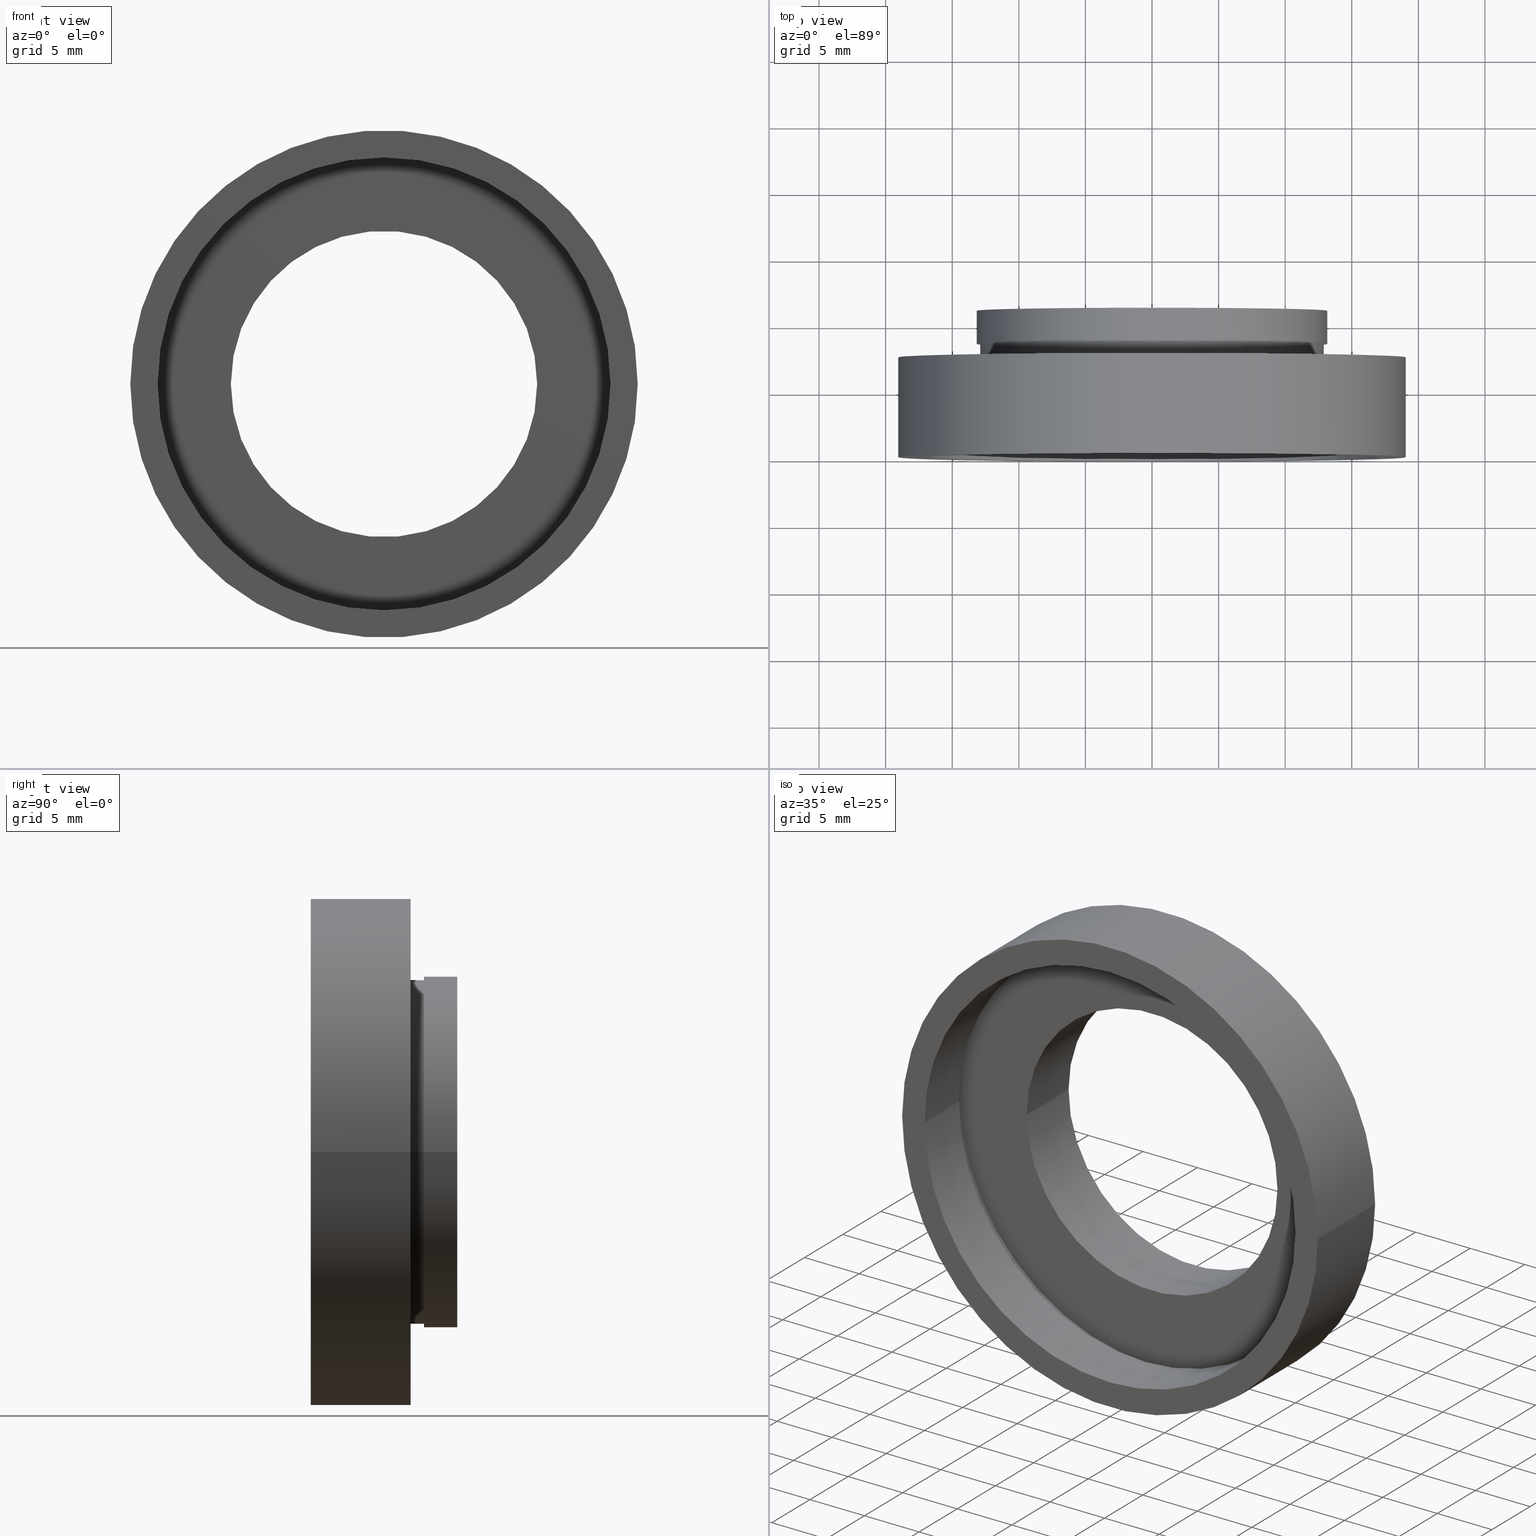
[diagram: canonical four-view strip — front | top / right | iso, engineering-drawing reading convention]
A machine part, canonical four-view strip (front | top / right | iso — engineering-drawing reading convention). The complete STEP part file that produces these views, byte-faithful:
ISO-10303-21;
HEADER;
FILE_DESCRIPTION (( 'STEP AP214' ),
    '1' );
FILE_NAME ('504114.STEP',
    '2019-10-09T08:10:50',
    ( '' ),
    ( '' ),
    'SwSTEP 2.0',
    'SolidWorks 2016',
    '' );
FILE_SCHEMA (( 'AUTOMOTIVE_DESIGN' ));
ENDSEC;

DATA;
#1 = FACE_OUTER_BOUND ( 'NONE', #17, .T. ) ;
#2 = EDGE_LOOP ( 'NONE', ( #591, #211, #199, #290 ) ) ;
#3 = DIRECTION ( 'NONE',  ( -1.000000000000000000, -1.318178933113075200E-016, 0.0000000000000000000 ) ) ;
#4 = CIRCLE ( 'NONE', #327, 19.04999999999999700 ) ;
#5 = DIRECTION ( 'NONE',  ( -1.224646799147351000E-016, 1.000000000000000000, -0.0000000000000000000 ) ) ;
#6 =( GEOMETRIC_REPRESENTATION_CONTEXT ( 3 ) GLOBAL_UNCERTAINTY_ASSIGNED_CONTEXT ( ( #63 ) ) GLOBAL_UNIT_ASSIGNED_CONTEXT ( ( #434, #525, #151 ) ) REPRESENTATION_CONTEXT ( 'NONE', 'WORKASPACE' ) );
#7 = MECHANICAL_DESIGN_GEOMETRIC_PRESENTATION_REPRESENTATION (  '', ( #383 ), #449 ) ;
#8 = ORIENTED_EDGE ( 'NONE', *, *, #348, .T. ) ;
#9 = ADVANCED_FACE ( 'NONE', ( #126, #66 ), #263, .F. ) ;
#10 =( NAMED_UNIT ( * ) SI_UNIT ( $, .STERADIAN. ) SOLID_ANGLE_UNIT ( ) );
#11 = CYLINDRICAL_SURFACE ( 'NONE', #414, 17.00000000000000000 ) ;
#12 = DIRECTION ( 'NONE',  ( -1.000000000000000000, 0.0000000000000000000, 0.0000000000000000000 ) ) ;
#13 = DIRECTION ( 'NONE',  ( -1.000000000000000000, -1.224646799147351000E-016, 0.0000000000000000000 ) ) ;
#14 = ADVANCED_FACE ( 'NONE', ( #554 ), #362, .T. ) ;
#15 = ORIENTED_EDGE ( 'NONE', *, *, #316, .T. ) ;
#16 = CARTESIAN_POINT ( 'NONE',  ( 0.0000000000000000000, 16.88601823708207700, 0.0000000000000000000 ) ) ;
#17 = EDGE_LOOP ( 'NONE', ( #224, #89, #512, #81 ) ) ;
#18 = ORIENTED_EDGE ( 'NONE', *, *, #154, .F. ) ;
#19 = VECTOR ( 'NONE', #251, 1000.000000000000000 ) ;
#20 = DIRECTION ( 'NONE',  ( -1.000000000000000000, 0.0000000000000000000, 0.0000000000000000000 ) ) ;
#21 = EDGE_CURVE ( 'NONE', #272, #536, #431, .T. ) ;
#22 = FILL_AREA_STYLE ('',( #217 ) ) ;
#23 = ADVANCED_FACE ( 'NONE', ( #1 ), #95, .F. ) ;
#24 = ORIENTED_EDGE ( 'NONE', *, *, #325, .F. ) ;
#25 = CARTESIAN_POINT ( 'NONE',  ( 1.149455719078122700E-015, 7.499999999999998200, 0.0000000000000000000 ) ) ;
#26 = EDGE_CURVE ( 'NONE', #590, #112, #105, .T. ) ;
#27 = ORIENTED_EDGE ( 'NONE', *, *, #136, .F. ) ;
#28 = AXIS2_PLACEMENT_3D ( 'NONE', #261, #355, #307 ) ;
#29 = ORIENTED_EDGE ( 'NONE', *, *, #182, .T. ) ;
#30 = APPLICATION_CONTEXT ( 'automotive_design' ) ;
#31 = CYLINDRICAL_SURFACE ( 'NONE', #618, 12.90000000000000000 ) ;
#32 = DIRECTION ( 'NONE',  ( -1.224646799147351000E-016, 1.000000000000000000, -0.0000000000000000000 ) ) ;
#33 = CARTESIAN_POINT ( 'NONE',  ( 0.0000000000000000000, 16.88601823708207700, 0.0000000000000000000 ) ) ;
#34 = ORIENTED_EDGE ( 'NONE', *, *, #26, .F. ) ;
#35 = EDGE_CURVE ( 'NONE', #344, #572, #447, .T. ) ;
#36 = ORIENTED_EDGE ( 'NONE', *, *, #182, .F. ) ;
#37 = FACE_OUTER_BOUND ( 'NONE', #483, .T. ) ;
#38 = DIRECTION ( 'NONE',  ( -1.000000000000000000, -1.344746880602176000E-016, 0.0000000000000000000 ) ) ;
#39 = MANIFOLD_SOLID_BREP ( '��ת1', #207 ) ;
#40 = VERTEX_POINT ( 'NONE', #564 ) ;
#41 = DIRECTION ( 'NONE',  ( -1.224646799147351000E-016, 1.000000000000000000, -0.0000000000000000000 ) ) ;
#42 = VERTEX_POINT ( 'NONE', #609 ) ;
#43 = AXIS2_PLACEMENT_3D ( 'NONE', #33, #378, #385 ) ;
#44 = EDGE_CURVE ( 'NONE', #178, #269, #619, .T. ) ;
#45 = FILL_AREA_STYLE ('',( #624 ) ) ;
#46 =( GEOMETRIC_REPRESENTATION_CONTEXT ( 3 ) GLOBAL_UNCERTAINTY_ASSIGNED_CONTEXT ( ( #221 ) ) GLOBAL_UNIT_ASSIGNED_CONTEXT ( ( #387, #146, #90 ) ) REPRESENTATION_CONTEXT ( 'NONE', 'WORKASPACE' ) );
#47 = DIRECTION ( 'NONE',  ( -1.000000000000000000, -1.224646799147351500E-016, 0.0000000000000000000 ) ) ;
#48 = ORIENTED_EDGE ( 'NONE', *, *, #26, .T. ) ;
#49 = ORIENTED_EDGE ( 'NONE', *, *, #59, .F. ) ;
#50 = CARTESIAN_POINT ( 'NONE',  ( 17.60000000000000100, 5.500000000000000000, 2.155378366499341600E-015 ) ) ;
#51 = AXIS2_PLACEMENT_3D ( 'NONE', #481, #614, #567 ) ;
#52 = LINE ( 'NONE', #617, #479 ) ;
#53 = DIRECTION ( 'NONE',  ( -1.224646799147351000E-016, 1.000000000000000000, -0.0000000000000000000 ) ) ;
#54 = AXIS2_PLACEMENT_3D ( 'NONE', #356, #216, #122 ) ;
#55 = FILL_AREA_STYLE ('',( #446 ) ) ;
#56 = ORIENTED_EDGE ( 'NONE', *, *, #233, .F. ) ;
#57 =( NAMED_UNIT ( * ) PLANE_ANGLE_UNIT ( ) SI_UNIT ( $, .RADIAN. ) );
#58 = VERTEX_POINT ( 'NONE', #561 ) ;
#59 = EDGE_CURVE ( 'NONE', #320, #219, #500, .T. ) ;
#60 = CARTESIAN_POINT ( 'NONE',  ( 1.394385078907593000E-015, 5.499999999999998200, 0.0000000000000000000 ) ) ;
#61 = ADVANCED_FACE ( 'NONE', ( #87, #73 ), #415, .F. ) ;
#62 = PRODUCT_RELATED_PRODUCT_CATEGORY ( 'part', '', ( #70 ) ) ;
#63 = UNCERTAINTY_MEASURE_WITH_UNIT (LENGTH_MEASURE( 1.000000000000000100E-005 ), #434, 'distance_accuracy_value', 'NONE');
#64 = DIRECTION ( 'NONE',  ( -1.000000000000000000, -9.856383386231857600E-017, 0.0000000000000000000 ) ) ;
#65 = AXIS2_PLACEMENT_3D ( 'NONE', #25, #421, #469 ) ;
#66 = FACE_BOUND ( 'NONE', #573, .T. ) ;
#67 = AXIS2_PLACEMENT_3D ( 'NONE', #597, #589, #400 ) ;
#68 = COLOUR_RGB ( '',1.000000000000000000, 1.000000000000000000, 1.000000000000000000 ) ;
#69 = EDGE_CURVE ( 'NONE', #320, #40, #111, .T. ) ;
#70 = PRODUCT ( '504114', '504114', '', ( #466 ) ) ;
#71 =( NAMED_UNIT ( * ) SI_UNIT ( $, .STERADIAN. ) SOLID_ANGLE_UNIT ( ) );
#72 = CARTESIAN_POINT ( 'NONE',  ( 19.05000000000000100, 7.500000000000000900, 2.332952152375707600E-015 ) ) ;
#73 = FACE_BOUND ( 'NONE', #137, .T. ) ;
#74 = ORIENTED_EDGE ( 'NONE', *, *, #623, .T. ) ;
#75 = ORIENTED_EDGE ( 'NONE', *, *, #80, .T. ) ;
#76 = FACE_OUTER_BOUND ( 'NONE', #392, .T. ) ;
#77 = AXIS2_PLACEMENT_3D ( 'NONE', #463, #315, #553 ) ;
#78 = CARTESIAN_POINT ( 'NONE',  ( 0.0000000000000000000, 16.88601823708207700, 0.0000000000000000000 ) ) ;
#79 = DIRECTION ( 'NONE',  ( -1.224646799147351000E-016, 1.000000000000000000, -0.0000000000000000000 ) ) ;
#80 = EDGE_CURVE ( 'NONE', #42, #178, #607, .T. ) ;
#81 = ORIENTED_EDGE ( 'NONE', *, *, #204, .F. ) ;
#82 = EDGE_LOOP ( 'NONE', ( #399, #186, #546, #297 ) ) ;
#83 = LINE ( 'NONE', #583, #328 ) ;
#84 = SURFACE_SIDE_STYLE ('',( #585 ) ) ;
#85 = DIRECTION ( 'NONE',  ( -1.000000000000000000, -1.508455196501571400E-016, 0.0000000000000000000 ) ) ;
#86 = STYLED_ITEM ( 'NONE', ( #601 ), #301 ) ;
#87 = FACE_OUTER_BOUND ( 'NONE', #365, .T. ) ;
#88 = AXIS2_PLACEMENT_3D ( 'NONE', #110, #114, #503 ) ;
#89 = ORIENTED_EDGE ( 'NONE', *, *, #154, .T. ) ;
#90 =( NAMED_UNIT ( * ) SI_UNIT ( $, .STERADIAN. ) SOLID_ANGLE_UNIT ( ) );
#91 = EDGE_CURVE ( 'NONE', #112, #590, #350, .T. ) ;
#92 = CARTESIAN_POINT ( 'NONE',  ( 2.067940818438636500E-015, -3.469446951953614200E-015, 0.0000000000000000000 ) ) ;
#93 = PRESENTATION_LAYER_ASSIGNMENT (  '', '', ( #338 ) ) ;
#94 = CARTESIAN_POINT ( 'NONE',  ( 1.516849758822328100E-015, 4.499999999999999100, 0.0000000000000000000 ) ) ;
#95 = CYLINDRICAL_SURFACE ( 'NONE', #166, 17.00000000000000000 ) ;
#96 = ORIENTED_EDGE ( 'NONE', *, *, #422, .F. ) ;
#97 = CARTESIAN_POINT ( 'NONE',  ( 17.00000000000000400, -1.387547393403117700E-015, 2.081899558550500700E-015 ) ) ;
#98 = AXIS2_PLACEMENT_3D ( 'NONE', #149, #526, #569 ) ;
#99 = CYLINDRICAL_SURFACE ( 'NONE', #43, 17.60000000000000100 ) ;
#100 = COLOUR_RGB ( '',1.000000000000000000, 1.000000000000000000, 1.000000000000000000 ) ;
#101 = EDGE_CURVE ( 'NONE', #275, #42, #223, .T. ) ;
#102 = DIRECTION ( 'NONE',  ( -1.224646799147351000E-016, 1.000000000000000000, -0.0000000000000000000 ) ) ;
#103 = PRESENTATION_STYLE_ASSIGNMENT (( #430 ) ) ;
#104 = SURFACE_STYLE_USAGE ( .BOTH. , #594 ) ;
#105 = CIRCLE ( 'NONE', #372, 19.05000000000000100 ) ;
#106 = LINE ( 'NONE', #404, #559 ) ;
#107 = PLANE ( 'NONE',  #375 ) ;
#108 = AXIS2_PLACEMENT_3D ( 'NONE', #603, #578, #369 ) ;
#109 = DIRECTION ( 'NONE',  ( -1.000000000000000000, -1.821231995776175700E-016, 0.0000000000000000000 ) ) ;
#110 = CARTESIAN_POINT ( 'NONE',  ( 0.0000000000000000000, 16.88601823708207700, 0.0000000000000000000 ) ) ;
#111 = CIRCLE ( 'NONE', #587, 17.60000000000000100 ) ;
#112 = VERTEX_POINT ( 'NONE', #72 ) ;
#113 = CARTESIAN_POINT ( 'NONE',  ( 7.208293393765502500E-016, 10.99999999999999600, 0.0000000000000000000 ) ) ;
#114 = DIRECTION ( 'NONE',  ( -1.224646799147351000E-016, 1.000000000000000000, -0.0000000000000000000 ) ) ;
#115 = CIRCLE ( 'NONE', #155, 12.90000000000000000 ) ;
#116 = EDGE_CURVE ( 'NONE', #58, #225, #161, .T. ) ;
#117 = PRESENTATION_STYLE_ASSIGNMENT (( #293 ) ) ;
#118 = CARTESIAN_POINT ( 'NONE',  ( 2.067940818438636500E-015, -3.469446951953614200E-015, 0.0000000000000000000 ) ) ;
#119 = MECHANICAL_DESIGN_GEOMETRIC_PRESENTATION_REPRESENTATION (  '', ( #338 ), #6 ) ;
#120 = FILL_AREA_STYLE_COLOUR ( '', #570 ) ;
#121 = CARTESIAN_POINT ( 'NONE',  ( -13.15999999999999700, 8.499999999999996400, 0.0000000000000000000 ) ) ;
#122 = DIRECTION ( 'NONE',  ( -1.000000000000000000, -1.224646799147351000E-016, 0.0000000000000000000 ) ) ;
#123 = PRESENTATION_LAYER_ASSIGNMENT (  '', '', ( #252 ) ) ;
#124 = ADVANCED_FACE ( 'NONE', ( #489 ), #229, .T. ) ;
#125 = ORIENTED_EDGE ( 'NONE', *, *, #422, .T. ) ;
#126 = FACE_OUTER_BOUND ( 'NONE', #235, .T. ) ;
#127 =( NAMED_UNIT ( * ) PLANE_ANGLE_UNIT ( ) SI_UNIT ( $, .RADIAN. ) );
#128 = PRESENTATION_LAYER_ASSIGNMENT (  '', '', ( #86 ) ) ;
#129 = CIRCLE ( 'NONE', #244, 13.16000000000000000 ) ;
#130 =( NAMED_UNIT ( * ) SI_UNIT ( $, .STERADIAN. ) SOLID_ANGLE_UNIT ( ) );
#131 = PRESENTATION_LAYER_ASSIGNMENT (  '', '', ( #361 ) ) ;
#132 = DIRECTION ( 'NONE',  ( -1.224646799147351000E-016, 1.000000000000000000, -0.0000000000000000000 ) ) ;
#133 =( NAMED_UNIT ( * ) PLANE_ANGLE_UNIT ( ) SI_UNIT ( $, .RADIAN. ) );
#134 = ADVANCED_FACE ( 'NONE', ( #472, #169 ), #278, .F. ) ;
#135 = DIRECTION ( 'NONE',  ( -1.000000000000000000, -1.224646799147351000E-016, 0.0000000000000000000 ) ) ;
#136 = EDGE_CURVE ( 'NONE', #143, #212, #52, .T. ) ;
#137 = EDGE_LOOP ( 'NONE', ( #555, #388 ) ) ;
#138 = DIRECTION ( 'NONE',  ( -1.224646799147351000E-016, 1.000000000000000000, -0.0000000000000000000 ) ) ;
#139 = CIRCLE ( 'NONE', #208, 11.50000000000000200 ) ;
#140 = CARTESIAN_POINT ( 'NONE',  ( 1.026991039163387700E-015, 8.499999999999998200, 0.0000000000000000000 ) ) ;
#141 = CARTESIAN_POINT ( 'NONE',  ( -19.04999999999999400, -5.802399104329317500E-015, 0.0000000000000000000 ) ) ;
#142 = EDGE_CURVE ( 'NONE', #557, #608, #465, .T. ) ;
#143 = VERTEX_POINT ( 'NONE', #424 ) ;
#144 = ORIENTED_EDGE ( 'NONE', *, *, #515, .F. ) ;
#145 = SURFACE_STYLE_FILL_AREA ( #22 ) ;
#146 =( NAMED_UNIT ( * ) PLANE_ANGLE_UNIT ( ) SI_UNIT ( $, .RADIAN. ) );
#147 = FILL_AREA_STYLE ('',( #429 ) ) ;
#148 = PRODUCT_DEFINITION_FORMATION_WITH_SPECIFIED_SOURCE ( '�κ�', '', #70, .NOT_KNOWN. ) ;
#149 = CARTESIAN_POINT ( 'NONE',  ( 1.394385078907593000E-015, 5.499999999999998200, 0.0000000000000000000 ) ) ;
#150 = PRESENTATION_LAYER_ASSIGNMENT (  '', '', ( #506 ) ) ;
#151 =( NAMED_UNIT ( * ) SI_UNIT ( $, .STERADIAN. ) SOLID_ANGLE_UNIT ( ) );
#152 = DIRECTION ( 'NONE',  ( -1.224646799147351000E-016, 1.000000000000000000, -0.0000000000000000000 ) ) ;
#153 =( LENGTH_UNIT ( ) NAMED_UNIT ( * ) SI_UNIT ( .MILLI., .METRE. ) );
#154 = EDGE_CURVE ( 'NONE', #281, #344, #357, .T. ) ;
#155 = AXIS2_PLACEMENT_3D ( 'NONE', #412, #41, #468 ) ;
#156 =( NAMED_UNIT ( * ) PLANE_ANGLE_UNIT ( ) SI_UNIT ( $, .RADIAN. ) );
#157 = SURFACE_SIDE_STYLE ('',( #195 ) ) ;
#158 = FACE_OUTER_BOUND ( 'NONE', #282, .T. ) ;
#159 = DIRECTION ( 'NONE',  ( -1.000000000000000000, -1.508455196501571200E-016, 0.0000000000000000000 ) ) ;
#160 =( NAMED_UNIT ( * ) PLANE_ANGLE_UNIT ( ) SI_UNIT ( $, .RADIAN. ) );
#161 = CIRCLE ( 'NONE', #605, 19.04999999999999700 ) ;
#162 = ORIENTED_EDGE ( 'NONE', *, *, #101, .T. ) ;
#163 = STYLED_ITEM ( 'NONE', ( #529 ), #550 ) ;
#164 = CIRCLE ( 'NONE', #511, 13.15999999999999800 ) ;
#165 = CARTESIAN_POINT ( 'NONE',  ( 0.0000000000000000000, 16.88601823708207700, 0.0000000000000000000 ) ) ;
#166 = AXIS2_PLACEMENT_3D ( 'NONE', #165, #303, #514 ) ;
#167 = ADVANCED_FACE ( 'NONE', ( #551 ), #99, .F. ) ;
#168 = EDGE_LOOP ( 'NONE', ( #513, #393 ) ) ;
#169 = FACE_OUTER_BOUND ( 'NONE', #450, .T. ) ;
#170 = AXIS2_PLACEMENT_3D ( 'NONE', #94, #437, #390 ) ;
#171 = VERTEX_POINT ( 'NONE', #522 ) ;
#172 = ADVANCED_FACE ( 'NONE', ( #477 ), #367, .F. ) ;
#173 = COLOUR_RGB ( '',1.000000000000000000, 1.000000000000000000, 1.000000000000000000 ) ;
#174 = CIRCLE ( 'NONE', #345, 11.50000000000000000 ) ;
#175 = EDGE_CURVE ( 'NONE', #212, #306, #329, .T. ) ;
#176 = CARTESIAN_POINT ( 'NONE',  ( 19.05000000000000100, -3.081545720815988800E-016, 0.0000000000000000000 ) ) ;
#177 = ADVANCED_FACE ( 'NONE', ( #539 ), #593, .T. ) ;
#178 = VERTEX_POINT ( 'NONE', #279 ) ;
#179 =( LENGTH_UNIT ( ) NAMED_UNIT ( * ) SI_UNIT ( .MILLI., .METRE. ) );
#180 = UNCERTAINTY_MEASURE_WITH_UNIT (LENGTH_MEASURE( 1.000000000000000100E-005 ), #179, 'distance_accuracy_value', 'NONE');
#181 = DIRECTION ( 'NONE',  ( -1.224646799147351000E-016, 1.000000000000000000, -0.0000000000000000000 ) ) ;
#182 = EDGE_CURVE ( 'NONE', #42, #275, #174, .T. ) ;
#183 =( GEOMETRIC_REPRESENTATION_CONTEXT ( 3 ) GLOBAL_UNCERTAINTY_ASSIGNED_CONTEXT ( ( #470 ) ) GLOBAL_UNIT_ASSIGNED_CONTEXT ( ( #213, #127, #71 ) ) REPRESENTATION_CONTEXT ( 'NONE', 'WORKASPACE' ) );
#184 = EDGE_LOOP ( 'NONE', ( #162, #29 ) ) ;
#185 = SURFACE_STYLE_USAGE ( .BOTH. , #84 ) ;
#186 = ORIENTED_EDGE ( 'NONE', *, *, #142, .T. ) ;
#187 = CARTESIAN_POINT ( 'NONE',  ( 1.394385078907593000E-015, 5.499999999999998200, 0.0000000000000000000 ) ) ;
#188 = AXIS2_PLACEMENT_3D ( 'NONE', #140, #478, #38 ) ;
#189 = CARTESIAN_POINT ( 'NONE',  ( 0.0000000000000000000, 16.88601823708207700, 0.0000000000000000000 ) ) ;
#190 =( GEOMETRIC_REPRESENTATION_CONTEXT ( 3 ) GLOBAL_UNCERTAINTY_ASSIGNED_CONTEXT ( ( #384 ) ) GLOBAL_UNIT_ASSIGNED_CONTEXT ( ( #153, #156, #493 ) ) REPRESENTATION_CONTEXT ( 'NONE', 'WORKASPACE' ) );
#191 = DIRECTION ( 'NONE',  ( 1.224646799147351000E-016, -1.000000000000000000, 0.0000000000000000000 ) ) ;
#192 = EDGE_LOOP ( 'NONE', ( #335, #318, #353, #24 ) ) ;
#193 = ORIENTED_EDGE ( 'NONE', *, *, #255, .F. ) ;
#194 = DIRECTION ( 'NONE',  ( -1.000000000000000000, 0.0000000000000000000, 0.0000000000000000000 ) ) ;
#195 = SURFACE_STYLE_FILL_AREA ( #45 ) ;
#196 = CARTESIAN_POINT ( 'NONE',  ( 12.90000000000000200, 8.500000000000000000, 1.579794370900085700E-015 ) ) ;
#197 = PRODUCT_DEFINITION ( 'δ֪', '', #148, #436 ) ;
#198 = SHAPE_DEFINITION_REPRESENTATION ( #287, #352 ) ;
#199 = ORIENTED_EDGE ( 'NONE', *, *, #233, .T. ) ;
#200 = ORIENTED_EDGE ( 'NONE', *, *, #580, .F. ) ;
#201 = ORIENTED_EDGE ( 'NONE', *, *, #101, .F. ) ;
#202 = FACE_OUTER_BOUND ( 'NONE', #448, .T. ) ;
#203 = PRESENTATION_LAYER_ASSIGNMENT (  '', '', ( #383 ) ) ;
#204 = EDGE_CURVE ( 'NONE', #171, #572, #538, .T. ) ;
#205 = COLOUR_RGB ( '',1.000000000000000000, 1.000000000000000000, 1.000000000000000000 ) ;
#206 = DIRECTION ( 'NONE',  ( -1.224646799147351000E-016, 1.000000000000000000, -0.0000000000000000000 ) ) ;
#207 = CLOSED_SHELL ( 'NONE', ( #454, #602, #177, #360, #172, #23, #61, #301, #408, #167, #600, #366, #134, #550, #9, #14, #210, #124 ) ) ;
#208 = AXIS2_PLACEMENT_3D ( 'NONE', #544, #206, #159 ) ;
#209 = DIRECTION ( 'NONE',  ( -1.000000000000000000, 0.0000000000000000000, 0.0000000000000000000 ) ) ;
#210 = ADVANCED_FACE ( 'NONE', ( #428, #37 ), #611, .F. ) ;
#211 = ORIENTED_EDGE ( 'NONE', *, *, #116, .T. ) ;
#212 = VERTEX_POINT ( 'NONE', #196 ) ;
#213 =( LENGTH_UNIT ( ) NAMED_UNIT ( * ) SI_UNIT ( .MILLI., .METRE. ) );
#214 = AXIS2_PLACEMENT_3D ( 'NONE', #189, #524, #485 ) ;
#215 = DIRECTION ( 'NONE',  ( -1.224646799147351000E-016, 1.000000000000000000, -0.0000000000000000000 ) ) ;
#216 = DIRECTION ( 'NONE',  ( -1.224646799147351000E-016, 1.000000000000000000, 0.0000000000000000000 ) ) ;
#217 = FILL_AREA_STYLE_COLOUR ( '', #474 ) ;
#218 = AXIS2_PLACEMENT_3D ( 'NONE', #496, #347, #209 ) ;
#219 = VERTEX_POINT ( 'NONE', #50 ) ;
#220 = SURFACE_STYLE_FILL_AREA ( #396 ) ;
#221 = UNCERTAINTY_MEASURE_WITH_UNIT (LENGTH_MEASURE( 1.000000000000000100E-005 ), #387, 'distance_accuracy_value', 'NONE');
#222 = CARTESIAN_POINT ( 'NONE',  ( 1.516849758822328100E-015, 4.499999999999999100, 0.0000000000000000000 ) ) ;
#223 = CIRCLE ( 'NONE', #98, 11.50000000000000000 ) ;
#224 = ORIENTED_EDGE ( 'NONE', *, *, #264, .F. ) ;
#225 = VERTEX_POINT ( 'NONE', #141 ) ;
#226 = VECTOR ( 'NONE', #410, 1000.000000000000000 ) ;
#227 = SURFACE_SIDE_STYLE ('',( #612 ) ) ;
#228 = CYLINDRICAL_SURFACE ( 'NONE', #218, 11.50000000000000000 ) ;
#229 = CYLINDRICAL_SURFACE ( 'NONE', #518, 19.04999999999999700 ) ;
#230 =( NAMED_UNIT ( * ) PLANE_ANGLE_UNIT ( ) SI_UNIT ( $, .RADIAN. ) );
#231 = AXIS2_PLACEMENT_3D ( 'NONE', #333, #435, #337 ) ;
#232 = DIRECTION ( 'NONE',  ( -1.224646799147351000E-016, 1.000000000000000000, -0.0000000000000000000 ) ) ;
#233 = EDGE_CURVE ( 'NONE', #225, #590, #575, .T. ) ;
#234 = DIRECTION ( 'NONE',  ( 1.000000000000000000, 1.224646799147351000E-016, 0.0000000000000000000 ) ) ;
#235 = EDGE_LOOP ( 'NONE', ( #342, #425 ) ) ;
#236 = APPLICATION_CONTEXT ( 'automotive_design' ) ;
#237 =( NAMED_UNIT ( * ) SI_UNIT ( $, .STERADIAN. ) SOLID_ANGLE_UNIT ( ) );
#238 = DIRECTION ( 'NONE',  ( -1.000000000000000000, -1.224646799147351000E-016, 0.0000000000000000000 ) ) ;
#239 = DIRECTION ( 'NONE',  ( -1.224646799147351000E-016, 1.000000000000000000, -0.0000000000000000000 ) ) ;
#240 = VECTOR ( 'NONE', #268, 1000.000000000000000 ) ;
#241 = ORIENTED_EDGE ( 'NONE', *, *, #615, .T. ) ;
#242 = UNCERTAINTY_MEASURE_WITH_UNIT (LENGTH_MEASURE( 1.000000000000000100E-005 ), #298, 'distance_accuracy_value', 'NONE');
#243 = CARTESIAN_POINT ( 'NONE',  ( 12.90000000000000200, 7.500000000000000000, 0.0000000000000000000 ) ) ;
#244 = AXIS2_PLACEMENT_3D ( 'NONE', #113, #540, #3 ) ;
#245 = CIRCLE ( 'NONE', #231, 12.90000000000000000 ) ;
#246 = EDGE_CURVE ( 'NONE', #256, #306, #336, .T. ) ;
#247 = PRESENTATION_LAYER_ASSIGNMENT (  '', '', ( #163 ) ) ;
#248 = CARTESIAN_POINT ( 'NONE',  ( -12.89999999999999900, 8.499999999999996400, 0.0000000000000000000 ) ) ;
#249 = MECHANICAL_DESIGN_GEOMETRIC_PRESENTATION_REPRESENTATION (  '', ( #252 ), #438 ) ;
#250 = ORIENTED_EDGE ( 'NONE', *, *, #291, .F. ) ;
#251 = DIRECTION ( 'NONE',  ( -1.224646799147351000E-016, 1.000000000000000000, -0.0000000000000000000 ) ) ;
#252 = STYLED_ITEM ( 'NONE', ( #504 ), #177 ) ;
#253 = DIRECTION ( 'NONE',  ( 1.000000000000000000, 1.224646799147351000E-016, 0.0000000000000000000 ) ) ;
#254 = DIRECTION ( 'NONE',  ( -1.224646799147351000E-016, 1.000000000000000000, -0.0000000000000000000 ) ) ;
#255 = EDGE_CURVE ( 'NONE', #143, #256, #245, .T. ) ;
#256 = VERTEX_POINT ( 'NONE', #622 ) ;
#257 = SURFACE_SIDE_STYLE ('',( #443 ) ) ;
#258 = LINE ( 'NONE', #581, #464 ) ;
#259 = MECHANICAL_DESIGN_GEOMETRIC_PRESENTATION_REPRESENTATION (  '', ( #273 ), #277 ) ;
#260 = CARTESIAN_POINT ( 'NONE',  ( -17.00000000000000400, 4.499999999999997300, 0.0000000000000000000 ) ) ;
#261 = CARTESIAN_POINT ( 'NONE',  ( 11.50000000000000200, 5.500000000000000000, 0.0000000000000000000 ) ) ;
#262 = ORIENTED_EDGE ( 'NONE', *, *, #394, .F. ) ;
#263 = PLANE ( 'NONE',  #54 ) ;
#264 = EDGE_CURVE ( 'NONE', #281, #171, #346, .T. ) ;
#265 = LINE ( 'NONE', #502, #19 ) ;
#266 = CARTESIAN_POINT ( 'NONE',  ( 1.149455719078122700E-015, 7.499999999999998200, 0.0000000000000000000 ) ) ;
#267 = MECHANICAL_DESIGN_GEOMETRIC_PRESENTATION_REPRESENTATION (  '', ( #163 ), #183 ) ;
#268 = DIRECTION ( 'NONE',  ( -1.224646799147351000E-016, 1.000000000000000000, -0.0000000000000000000 ) ) ;
#269 = VERTEX_POINT ( 'NONE', #492 ) ;
#270 = ORIENTED_EDGE ( 'NONE', *, *, #255, .T. ) ;
#271 = DIRECTION ( 'NONE',  ( -1.224646799147351000E-016, 1.000000000000000000, -0.0000000000000000000 ) ) ;
#272 = VERTEX_POINT ( 'NONE', #389 ) ;
#273 = STYLED_ITEM ( 'NONE', ( #398 ), #39 ) ;
#274 = DIRECTION ( 'NONE',  ( -1.224646799147351000E-016, 1.000000000000000000, -0.0000000000000000000 ) ) ;
#275 = VERTEX_POINT ( 'NONE', #579 ) ;
#276 = FACE_BOUND ( 'NONE', #596, .T. ) ;
#277 =( GEOMETRIC_REPRESENTATION_CONTEXT ( 3 ) GLOBAL_UNCERTAINTY_ASSIGNED_CONTEXT ( ( #530 ) ) GLOBAL_UNIT_ASSIGNED_CONTEXT ( ( #313, #364, #368 ) ) REPRESENTATION_CONTEXT ( 'NONE', 'WORKASPACE' ) );
#278 = PLANE ( 'NONE',  #610 ) ;
#279 = CARTESIAN_POINT ( 'NONE',  ( 11.50000000000000200, 10.99999999999999800, 1.408343819019456600E-015 ) ) ;
#280 = MECHANICAL_DESIGN_GEOMETRIC_PRESENTATION_REPRESENTATION (  '', ( #361 ), #547 ) ;
#281 = VERTEX_POINT ( 'NONE', #97 ) ;
#282 = EDGE_LOOP ( 'NONE', ( #598, #241, #34, #56 ) ) ;
#283 = LINE ( 'NONE', #359, #226 ) ;
#284 = EDGE_CURVE ( 'NONE', #256, #143, #314, .T. ) ;
#285 = VECTOR ( 'NONE', #531, 1000.000000000000000 ) ;
#286 = DIRECTION ( 'NONE',  ( -1.000000000000000000, -1.318178933113075500E-016, 0.0000000000000000000 ) ) ;
#287 = PRODUCT_DEFINITION_SHAPE ( 'NONE', 'NONE',  #197 ) ;
#288 = DIRECTION ( 'NONE',  ( 1.000000000000000000, 1.224646799147351000E-016, 0.0000000000000000000 ) ) ;
#289 = DIRECTION ( 'NONE',  ( -1.224646799147351000E-016, 1.000000000000000000, -0.0000000000000000000 ) ) ;
#290 = ORIENTED_EDGE ( 'NONE', *, *, #91, .F. ) ;
#291 = EDGE_CURVE ( 'NONE', #608, #536, #83, .T. ) ;
#292 = DIRECTION ( 'NONE',  ( 1.224646799147351000E-016, -1.000000000000000000, 0.0000000000000000000 ) ) ;
#293 = SURFACE_STYLE_USAGE ( .BOTH. , #257 ) ;
#294 = EDGE_CURVE ( 'NONE', #608, #557, #164, .T. ) ;
#295 =( LENGTH_UNIT ( ) NAMED_UNIT ( * ) SI_UNIT ( .MILLI., .METRE. ) );
#296 = ORIENTED_EDGE ( 'NONE', *, *, #80, .F. ) ;
#297 = ORIENTED_EDGE ( 'NONE', *, *, #21, .F. ) ;
#298 =( LENGTH_UNIT ( ) NAMED_UNIT ( * ) SI_UNIT ( .MILLI., .METRE. ) );
#299 = AXIS2_PLACEMENT_3D ( 'NONE', #571, #274, #194 ) ;
#300 = DIRECTION ( 'NONE',  ( 1.224646799147351000E-016, -1.000000000000000000, 0.0000000000000000000 ) ) ;
#301 = ADVANCED_FACE ( 'NONE', ( #584 ), #11, .F. ) ;
#302 = SURFACE_SIDE_STYLE ('',( #145 ) ) ;
#303 = DIRECTION ( 'NONE',  ( -1.224646799147351000E-016, 1.000000000000000000, -0.0000000000000000000 ) ) ;
#304 = ORIENTED_EDGE ( 'NONE', *, *, #69, .T. ) ;
#305 = SURFACE_STYLE_USAGE ( .BOTH. , #302 ) ;
#306 = VERTEX_POINT ( 'NONE', #248 ) ;
#307 = DIRECTION ( 'NONE',  ( -1.000000000000000000, -1.224646799147351000E-016, 0.0000000000000000000 ) ) ;
#308 = PLANE ( 'NONE',  #28 ) ;
#309 = SURFACE_STYLE_USAGE ( .BOTH. , #319 ) ;
#310 = EDGE_LOOP ( 'NONE', ( #18, #200, #460, #15 ) ) ;
#311 = ORIENTED_EDGE ( 'NONE', *, *, #507, .T. ) ;
#312 = FACE_BOUND ( 'NONE', #184, .T. ) ;
#313 =( LENGTH_UNIT ( ) NAMED_UNIT ( * ) SI_UNIT ( .MILLI., .METRE. ) );
#314 = CIRCLE ( 'NONE', #494, 12.90000000000000000 ) ;
#315 = DIRECTION ( 'NONE',  ( -1.224646799147351000E-016, 1.000000000000000000, -0.0000000000000000000 ) ) ;
#316 = EDGE_CURVE ( 'NONE', #572, #344, #457, .T. ) ;
#317 = DIRECTION ( 'NONE',  ( -1.224646799147351000E-016, 1.000000000000000000, 0.0000000000000000000 ) ) ;
#318 = ORIENTED_EDGE ( 'NONE', *, *, #59, .T. ) ;
#319 = SURFACE_SIDE_STYLE ('',( #459 ) ) ;
#320 = VERTEX_POINT ( 'NONE', #621 ) ;
#321 = ORIENTED_EDGE ( 'NONE', *, *, #21, .T. ) ;
#322 = DIRECTION ( 'NONE',  ( -1.224646799147351000E-016, 1.000000000000000000, -0.0000000000000000000 ) ) ;
#323 = DIRECTION ( 'NONE',  ( -1.224646799147351000E-016, 1.000000000000000000, -0.0000000000000000000 ) ) ;
#324 = AXIS2_PLACEMENT_3D ( 'NONE', #455, #138, #423 ) ;
#325 = EDGE_CURVE ( 'NONE', #40, #456, #258, .T. ) ;
#326 = ORIENTED_EDGE ( 'NONE', *, *, #394, .T. ) ;
#327 = AXIS2_PLACEMENT_3D ( 'NONE', #462, #552, #13 ) ;
#328 = VECTOR ( 'NONE', #152, 1000.000000000000000 ) ;
#329 = CIRCLE ( 'NONE', #188, 12.90000000000000000 ) ;
#330 = CARTESIAN_POINT ( 'NONE',  ( 0.0000000000000000000, 16.88601823708207700, 0.0000000000000000000 ) ) ;
#331 = AXIS2_PLACEMENT_3D ( 'NONE', #92, #391, #47 ) ;
#332 = DIRECTION ( 'NONE',  ( -1.000000000000000000, -2.040851148208008200E-016, 0.0000000000000000000 ) ) ;
#333 = CARTESIAN_POINT ( 'NONE',  ( 1.149455719078122700E-015, 7.499999999999998200, 0.0000000000000000000 ) ) ;
#334 = EDGE_LOOP ( 'NONE', ( #439, #373, #96, #250 ) ) ;
#335 = ORIENTED_EDGE ( 'NONE', *, *, #69, .F. ) ;
#336 = LINE ( 'NONE', #534, #285 ) ;
#337 = DIRECTION ( 'NONE',  ( -1.000000000000000000, -1.344746880602176000E-016, 0.0000000000000000000 ) ) ;
#338 = STYLED_ITEM ( 'NONE', ( #103 ), #352 ) ;
#339 = VECTOR ( 'NONE', #323, 1000.000000000000000 ) ;
#340 = CARTESIAN_POINT ( 'NONE',  ( 0.0000000000000000000, 16.88601823708207700, 0.0000000000000000000 ) ) ;
#341 = ORIENTED_EDGE ( 'NONE', *, *, #175, .F. ) ;
#342 = ORIENTED_EDGE ( 'NONE', *, *, #294, .F. ) ;
#343 = FILL_AREA_STYLE_COLOUR ( '', #427 ) ;
#344 = VERTEX_POINT ( 'NONE', #586 ) ;
#345 = AXIS2_PLACEMENT_3D ( 'NONE', #187, #379, #85 ) ;
#346 = CIRCLE ( 'NONE', #331, 17.00000000000000000 ) ;
#347 = DIRECTION ( 'NONE',  ( -1.224646799147351000E-016, 1.000000000000000000, -0.0000000000000000000 ) ) ;
#348 = EDGE_CURVE ( 'NONE', #456, #219, #549, .T. ) ;
#349 = CARTESIAN_POINT ( 'NONE',  ( -17.60000000000000100, 5.499999999999996400, 0.0000000000000000000 ) ) ;
#350 = CIRCLE ( 'NONE', #65, 19.05000000000000100 ) ;
#351 = AXIS2_PLACEMENT_3D ( 'NONE', #548, #132, #12 ) ;
#352 = ADVANCED_BREP_SHAPE_REPRESENTATION ( '504114', ( #39, #108 ), #46 ) ;
#353 = ORIENTED_EDGE ( 'NONE', *, *, #495, .T. ) ;
#354 = FACE_OUTER_BOUND ( 'NONE', #566, .T. ) ;
#355 = DIRECTION ( 'NONE',  ( -1.224646799147351000E-016, 1.000000000000000000, 0.0000000000000000000 ) ) ;
#356 = CARTESIAN_POINT ( 'NONE',  ( 13.16000000000000000, 8.500000000000000000, 0.0000000000000000000 ) ) ;
#357 = LINE ( 'NONE', #568, #339 ) ;
#358 = FILL_AREA_STYLE_COLOUR ( '', #205 ) ;
#359 = CARTESIAN_POINT ( 'NONE',  ( 19.04999999999999700, 16.88601823708208000, 2.332952152375707300E-015 ) ) ;
#360 = ADVANCED_FACE ( 'NONE', ( #491 ), #228, .F. ) ;
#361 = STYLED_ITEM ( 'NONE', ( #482 ), #23 ) ;
#362 = CYLINDRICAL_SURFACE ( 'NONE', #88, 12.90000000000000000 ) ;
#363 = DIRECTION ( 'NONE',  ( -1.224646799147351000E-016, 1.000000000000000000, -0.0000000000000000000 ) ) ;
#364 =( NAMED_UNIT ( * ) PLANE_ANGLE_UNIT ( ) SI_UNIT ( $, .RADIAN. ) );
#365 = EDGE_LOOP ( 'NONE', ( #441, #401 ) ) ;
#366 = ADVANCED_FACE ( 'NONE', ( #202 ), #451, .F. ) ;
#367 = CYLINDRICAL_SURFACE ( 'NONE', #214, 17.60000000000000100 ) ;
#368 =( NAMED_UNIT ( * ) SI_UNIT ( $, .STERADIAN. ) SOLID_ANGLE_UNIT ( ) );
#369 = DIRECTION ( 'NONE',  ( 1.000000000000000000, 0.0000000000000000000, 0.0000000000000000000 ) ) ;
#370 = CARTESIAN_POINT ( 'NONE',  ( 1.516849758822328100E-015, 4.499999999999999100, 0.0000000000000000000 ) ) ;
#371 = CARTESIAN_POINT ( 'NONE',  ( 11.50000000000000000, 16.88601823708207700, 1.408343819019456200E-015 ) ) ;
#372 = AXIS2_PLACEMENT_3D ( 'NONE', #266, #32, #562 ) ;
#373 = ORIENTED_EDGE ( 'NONE', *, *, #533, .T. ) ;
#374 = CIRCLE ( 'NONE', #516, 17.60000000000000100 ) ;
#375 = AXIS2_PLACEMENT_3D ( 'NONE', #499, #300, #253 ) ;
#376 = CARTESIAN_POINT ( 'NONE',  ( 2.067940818438636500E-015, -3.469446951953614200E-015, 0.0000000000000000000 ) ) ;
#377 = AXIS2_PLACEMENT_3D ( 'NONE', #118, #363, #545 ) ;
#378 = DIRECTION ( 'NONE',  ( -1.224646799147351000E-016, 1.000000000000000000, -0.0000000000000000000 ) ) ;
#379 = DIRECTION ( 'NONE',  ( -1.224646799147351000E-016, 1.000000000000000000, -0.0000000000000000000 ) ) ;
#380 = ORIENTED_EDGE ( 'NONE', *, *, #91, .T. ) ;
#381 = FACE_OUTER_BOUND ( 'NONE', #82, .T. ) ;
#382 = FILL_AREA_STYLE ('',( #358 ) ) ;
#383 = STYLED_ITEM ( 'NONE', ( #117 ), #366 ) ;
#384 = UNCERTAINTY_MEASURE_WITH_UNIT (LENGTH_MEASURE( 1.000000000000000100E-005 ), #153, 'distance_accuracy_value', 'NONE');
#385 = DIRECTION ( 'NONE',  ( -1.000000000000000000, -1.971276677246371500E-016, 0.0000000000000000000 ) ) ;
#386 = AXIS2_PLACEMENT_3D ( 'NONE', #370, #181, #413 ) ;
#387 =( LENGTH_UNIT ( ) NAMED_UNIT ( * ) SI_UNIT ( .MILLI., .METRE. ) );
#388 = ORIENTED_EDGE ( 'NONE', *, *, #264, .T. ) ;
#389 = CARTESIAN_POINT ( 'NONE',  ( 13.16000000000000200, 10.99999999999999800, 1.611635187677917100E-015 ) ) ;
#390 = DIRECTION ( 'NONE',  ( -1.000000000000000000, -1.020425574104004000E-016, 0.0000000000000000000 ) ) ;
#391 = DIRECTION ( 'NONE',  ( -1.224646799147351000E-016, 1.000000000000000000, -0.0000000000000000000 ) ) ;
#392 = EDGE_LOOP ( 'NONE', ( #311, #304 ) ) ;
#393 = ORIENTED_EDGE ( 'NONE', *, *, #495, .F. ) ;
#394 = EDGE_CURVE ( 'NONE', #269, #178, #139, .T. ) ;
#395 = DIRECTION ( 'NONE',  ( -1.000000000000000000, -9.856383386231857600E-017, 0.0000000000000000000 ) ) ;
#396 = FILL_AREA_STYLE ('',( #343 ) ) ;
#397 = CARTESIAN_POINT ( 'NONE',  ( 1.516849758822328100E-015, 4.499999999999999100, 0.0000000000000000000 ) ) ;
#398 = PRESENTATION_STYLE_ASSIGNMENT (( #510 ) ) ;
#399 = ORIENTED_EDGE ( 'NONE', *, *, #533, .F. ) ;
#400 = DIRECTION ( 'NONE',  ( -1.000000000000000000, 0.0000000000000000000, 0.0000000000000000000 ) ) ;
#401 = ORIENTED_EDGE ( 'NONE', *, *, #116, .F. ) ;
#402 = UNCERTAINTY_MEASURE_WITH_UNIT (LENGTH_MEASURE( 1.000000000000000100E-005 ), #295, 'distance_accuracy_value', 'NONE');
#403 = DIRECTION ( 'NONE',  ( -1.224646799147351000E-016, 1.000000000000000000, -0.0000000000000000000 ) ) ;
#404 = CARTESIAN_POINT ( 'NONE',  ( 13.15999999999999800, 16.88601823708207700, 1.611635187677916700E-015 ) ) ;
#405 = MECHANICAL_DESIGN_GEOMETRIC_PRESENTATION_REPRESENTATION (  '', ( #86 ), #190 ) ;
#406 = CARTESIAN_POINT ( 'NONE',  ( -19.05000000000000100, 7.499999999999995600, 0.0000000000000000000 ) ) ;
#407 = EDGE_LOOP ( 'NONE', ( #262, #527 ) ) ;
#408 = ADVANCED_FACE ( 'NONE', ( #276, #76 ), #107, .F. ) ;
#409 = ORIENTED_EDGE ( 'NONE', *, *, #507, .F. ) ;
#410 = DIRECTION ( 'NONE',  ( -1.224646799147351000E-016, 1.000000000000000000, -0.0000000000000000000 ) ) ;
#411 = VECTOR ( 'NONE', #322, 1000.000000000000000 ) ;
#412 = CARTESIAN_POINT ( 'NONE',  ( 1.026991039163387700E-015, 8.499999999999998200, 0.0000000000000000000 ) ) ;
#413 = DIRECTION ( 'NONE',  ( -1.000000000000000000, -1.020425574104004000E-016, 0.0000000000000000000 ) ) ;
#414 = AXIS2_PLACEMENT_3D ( 'NONE', #330, #537, #332 ) ;
#415 = PLANE ( 'NONE',  #577 ) ;
#416 = COLOUR_RGB ( '',1.000000000000000000, 1.000000000000000000, 1.000000000000000000 ) ;
#417 = APPLICATION_PROTOCOL_DEFINITION ( 'draft international standard', 'automotive_design', 1998, #236 ) ;
#418 = ORIENTED_EDGE ( 'NONE', *, *, #246, .T. ) ;
#419 = FILL_AREA_STYLE ('',( #120 ) ) ;
#420 = ORIENTED_EDGE ( 'NONE', *, *, #246, .F. ) ;
#421 = DIRECTION ( 'NONE',  ( -1.224646799147351000E-016, 1.000000000000000000, -0.0000000000000000000 ) ) ;
#422 = EDGE_CURVE ( 'NONE', #536, #272, #129, .T. ) ;
#423 = DIRECTION ( 'NONE',  ( -1.000000000000000000, -1.318178933113075200E-016, 0.0000000000000000000 ) ) ;
#424 = CARTESIAN_POINT ( 'NONE',  ( 12.90000000000000200, 7.500000000000000000, 1.579794370900085700E-015 ) ) ;
#425 = ORIENTED_EDGE ( 'NONE', *, *, #142, .F. ) ;
#426 = ORIENTED_EDGE ( 'NONE', *, *, #316, .F. ) ;
#427 = COLOUR_RGB ( '',1.000000000000000000, 1.000000000000000000, 1.000000000000000000 ) ;
#428 = FACE_BOUND ( 'NONE', #461, .T. ) ;
#429 = FILL_AREA_STYLE_COLOUR ( '', #100 ) ;
#430 = SURFACE_STYLE_USAGE ( .BOTH. , #432 ) ;
#431 = CIRCLE ( 'NONE', #324, 13.16000000000000000 ) ;
#432 = SURFACE_SIDE_STYLE ('',( #563 ) ) ;
#433 = DIRECTION ( 'NONE',  ( -1.000000000000000000, -1.821231995776175700E-016, 0.0000000000000000000 ) ) ;
#434 =( LENGTH_UNIT ( ) NAMED_UNIT ( * ) SI_UNIT ( .MILLI., .METRE. ) );
#435 = DIRECTION ( 'NONE',  ( -1.224646799147351000E-016, 1.000000000000000000, -0.0000000000000000000 ) ) ;
#436 = PRODUCT_DEFINITION_CONTEXT ( 'detailed design', #30, 'design' ) ;
#437 = DIRECTION ( 'NONE',  ( -1.224646799147351000E-016, 1.000000000000000000, -0.0000000000000000000 ) ) ;
#438 =( GEOMETRIC_REPRESENTATION_CONTEXT ( 3 ) GLOBAL_UNCERTAINTY_ASSIGNED_CONTEXT ( ( #558 ) ) GLOBAL_UNIT_ASSIGNED_CONTEXT ( ( #616, #230, #237 ) ) REPRESENTATION_CONTEXT ( 'NONE', 'WORKASPACE' ) );
#439 = ORIENTED_EDGE ( 'NONE', *, *, #294, .T. ) ;
#440 = SURFACE_STYLE_USAGE ( .BOTH. , #157 ) ;
#441 = ORIENTED_EDGE ( 'NONE', *, *, #523, .F. ) ;
#442 = AXIS2_PLACEMENT_3D ( 'NONE', #340, #452, #109 ) ;
#443 = SURFACE_STYLE_FILL_AREA ( #55 ) ;
#444 = DIRECTION ( 'NONE',  ( -1.000000000000000000, -1.344746880602176000E-016, 0.0000000000000000000 ) ) ;
#445 = CARTESIAN_POINT ( 'NONE',  ( 1.394385078907593000E-015, 5.499999999999998200, 0.0000000000000000000 ) ) ;
#446 = FILL_AREA_STYLE_COLOUR ( '', #68 ) ;
#447 = CIRCLE ( 'NONE', #386, 17.00000000000000400 ) ;
#448 = EDGE_LOOP ( 'NONE', ( #296, #201, #582, #326 ) ) ;
#449 =( GEOMETRIC_REPRESENTATION_CONTEXT ( 3 ) GLOBAL_UNCERTAINTY_ASSIGNED_CONTEXT ( ( #402 ) ) GLOBAL_UNIT_ASSIGNED_CONTEXT ( ( #295, #160, #498 ) ) REPRESENTATION_CONTEXT ( 'NONE', 'WORKASPACE' ) );
#450 = EDGE_LOOP ( 'NONE', ( #125, #321 ) ) ;
#451 = CYLINDRICAL_SURFACE ( 'NONE', #67, 11.50000000000000000 ) ;
#452 = DIRECTION ( 'NONE',  ( -1.224646799147351000E-016, 1.000000000000000000, -0.0000000000000000000 ) ) ;
#453 = CARTESIAN_POINT ( 'NONE',  ( -13.16000000000000000, 10.99999999999999500, 0.0000000000000000000 ) ) ;
#454 = ADVANCED_FACE ( 'NONE', ( #158 ), #599, .T. ) ;
#455 = CARTESIAN_POINT ( 'NONE',  ( 7.208293393765502500E-016, 10.99999999999999600, 0.0000000000000000000 ) ) ;
#456 = VERTEX_POINT ( 'NONE', #349 ) ;
#457 = CIRCLE ( 'NONE', #170, 17.00000000000000400 ) ;
#458 = AXIS2_PLACEMENT_3D ( 'NONE', #243, #292, #288 ) ;
#459 = SURFACE_STYLE_FILL_AREA ( #419 ) ;
#460 = ORIENTED_EDGE ( 'NONE', *, *, #204, .T. ) ;
#461 = EDGE_LOOP ( 'NONE', ( #543, #193 ) ) ;
#462 = CARTESIAN_POINT ( 'NONE',  ( 2.067940818438636500E-015, -3.469446951953614200E-015, 0.0000000000000000000 ) ) ;
#463 = CARTESIAN_POINT ( 'NONE',  ( 7.208293393765502500E-016, 10.99999999999999600, 0.0000000000000000000 ) ) ;
#464 = VECTOR ( 'NONE', #254, 1000.000000000000000 ) ;
#465 = CIRCLE ( 'NONE', #51, 13.15999999999999800 ) ;
#466 = PRODUCT_CONTEXT ( 'NONE', #236, 'mechanical' ) ;
#467 = CARTESIAN_POINT ( 'NONE',  ( 17.60000000000000100, 16.88601823708208000, 2.155378366499341600E-015 ) ) ;
#468 = DIRECTION ( 'NONE',  ( -1.000000000000000000, -1.344746880602176000E-016, 0.0000000000000000000 ) ) ;
#469 = DIRECTION ( 'NONE',  ( -1.000000000000000000, -1.365923996832131600E-016, 0.0000000000000000000 ) ) ;
#470 = UNCERTAINTY_MEASURE_WITH_UNIT (LENGTH_MEASURE( 1.000000000000000100E-005 ), #213, 'distance_accuracy_value', 'NONE');
#471 = ORIENTED_EDGE ( 'NONE', *, *, #136, .T. ) ;
#472 = FACE_BOUND ( 'NONE', #407, .T. ) ;
#473 = FILL_AREA_STYLE ('',( #556 ) ) ;
#474 = COLOUR_RGB ( '',1.000000000000000000, 1.000000000000000000, 1.000000000000000000 ) ;
#475 = AXIS2_PLACEMENT_3D ( 'NONE', #60, #403, #541 ) ;
#476 = VECTOR ( 'NONE', #239, 1000.000000000000000 ) ;
#477 = FACE_OUTER_BOUND ( 'NONE', #192, .T. ) ;
#478 = DIRECTION ( 'NONE',  ( -1.224646799147351000E-016, 1.000000000000000000, -0.0000000000000000000 ) ) ;
#479 = VECTOR ( 'NONE', #517, 1000.000000000000000 ) ;
#480 = CARTESIAN_POINT ( 'NONE',  ( -17.00000000000000000, 16.88601823708207300, 0.0000000000000000000 ) ) ;
#481 = CARTESIAN_POINT ( 'NONE',  ( 1.026991039163387700E-015, 8.499999999999998200, 0.0000000000000000000 ) ) ;
#482 = PRESENTATION_STYLE_ASSIGNMENT (( #309 ) ) ;
#483 = EDGE_LOOP ( 'NONE', ( #48, #380 ) ) ;
#484 = EDGE_LOOP ( 'NONE', ( #27, #270, #418, #341 ) ) ;
#485 = DIRECTION ( 'NONE',  ( -1.000000000000000000, -1.971276677246371500E-016, 0.0000000000000000000 ) ) ;
#486 = CARTESIAN_POINT ( 'NONE',  ( 1.026991039163387700E-015, 8.499999999999998200, 0.0000000000000000000 ) ) ;
#487 = VECTOR ( 'NONE', #79, 1000.000000000000000 ) ;
#488 = EDGE_LOOP ( 'NONE', ( #36, #75, #565, #144 ) ) ;
#489 = FACE_OUTER_BOUND ( 'NONE', #2, .T. ) ;
#490 = AXIS2_PLACEMENT_3D ( 'NONE', #445, #5, #64 ) ;
#491 = FACE_OUTER_BOUND ( 'NONE', #488, .T. ) ;
#492 = CARTESIAN_POINT ( 'NONE',  ( -11.50000000000000200, 10.99999999999999500, 0.0000000000000000000 ) ) ;
#493 =( NAMED_UNIT ( * ) SI_UNIT ( $, .STERADIAN. ) SOLID_ANGLE_UNIT ( ) );
#494 = AXIS2_PLACEMENT_3D ( 'NONE', #588, #102, #444 ) ;
#495 = EDGE_CURVE ( 'NONE', #219, #456, #521, .T. ) ;
#496 = CARTESIAN_POINT ( 'NONE',  ( 0.0000000000000000000, 16.88601823708207700, 0.0000000000000000000 ) ) ;
#497 = ORIENTED_EDGE ( 'NONE', *, *, #35, .F. ) ;
#498 =( NAMED_UNIT ( * ) SI_UNIT ( $, .STERADIAN. ) SOLID_ANGLE_UNIT ( ) );
#499 = CARTESIAN_POINT ( 'NONE',  ( 17.00000000000000400, 4.500000000000000000, 0.0000000000000000000 ) ) ;
#500 = LINE ( 'NONE', #467, #240 ) ;
#501 = FACE_OUTER_BOUND ( 'NONE', #168, .T. ) ;
#502 = CARTESIAN_POINT ( 'NONE',  ( -11.50000000000000000, 16.88601823708207700, 0.0000000000000000000 ) ) ;
#503 = DIRECTION ( 'NONE',  ( -1.000000000000000000, 0.0000000000000000000, 0.0000000000000000000 ) ) ;
#504 = PRESENTATION_STYLE_ASSIGNMENT (( #185 ) ) ;
#505 = DIRECTION ( 'NONE',  ( -1.224646799147351000E-016, 1.000000000000000000, -0.0000000000000000000 ) ) ;
#506 = STYLED_ITEM ( 'NONE', ( #560 ), #360 ) ;
#507 = EDGE_CURVE ( 'NONE', #40, #320, #374, .T. ) ;
#508 = CARTESIAN_POINT ( 'NONE',  ( 13.16000000000000200, 8.500000000000000000, 1.611635187677917100E-015 ) ) ;
#509 = ORIENTED_EDGE ( 'NONE', *, *, #284, .T. ) ;
#510 = SURFACE_STYLE_USAGE ( .BOTH. , #227 ) ;
#511 = AXIS2_PLACEMENT_3D ( 'NONE', #486, #289, #286 ) ;
#512 = ORIENTED_EDGE ( 'NONE', *, *, #35, .T. ) ;
#513 = ORIENTED_EDGE ( 'NONE', *, *, #348, .F. ) ;
#514 = DIRECTION ( 'NONE',  ( -1.000000000000000000, -2.040851148208008200E-016, 0.0000000000000000000 ) ) ;
#515 = EDGE_CURVE ( 'NONE', #275, #269, #265, .T. ) ;
#516 = AXIS2_PLACEMENT_3D ( 'NONE', #397, #53, #395 ) ;
#517 = DIRECTION ( 'NONE',  ( -1.224646799147351000E-016, 1.000000000000000000, -0.0000000000000000000 ) ) ;
#518 = AXIS2_PLACEMENT_3D ( 'NONE', #78, #520, #433 ) ;
#519 = ORIENTED_EDGE ( 'NONE', *, *, #325, .T. ) ;
#520 = DIRECTION ( 'NONE',  ( -1.224646799147351000E-016, 1.000000000000000000, -0.0000000000000000000 ) ) ;
#521 = CIRCLE ( 'NONE', #490, 17.60000000000000100 ) ;
#522 = CARTESIAN_POINT ( 'NONE',  ( -16.99999999999999600, -5.551346510504111700E-015, 0.0000000000000000000 ) ) ;
#523 = EDGE_CURVE ( 'NONE', #225, #58, #4, .T. ) ;
#524 = DIRECTION ( 'NONE',  ( -1.224646799147351000E-016, 1.000000000000000000, -0.0000000000000000000 ) ) ;
#525 =( NAMED_UNIT ( * ) PLANE_ANGLE_UNIT ( ) SI_UNIT ( $, .RADIAN. ) );
#526 = DIRECTION ( 'NONE',  ( -1.224646799147351000E-016, 1.000000000000000000, -0.0000000000000000000 ) ) ;
#527 = ORIENTED_EDGE ( 'NONE', *, *, #44, .F. ) ;
#528 = CARTESIAN_POINT ( 'NONE',  ( -19.04999999999999700, 16.88601823708207300, 0.0000000000000000000 ) ) ;
#529 = PRESENTATION_STYLE_ASSIGNMENT (( #305 ) ) ;
#530 = UNCERTAINTY_MEASURE_WITH_UNIT (LENGTH_MEASURE( 1.000000000000000100E-005 ), #313, 'distance_accuracy_value', 'NONE');
#531 = DIRECTION ( 'NONE',  ( -1.224646799147351000E-016, 1.000000000000000000, -0.0000000000000000000 ) ) ;
#532 =( GEOMETRIC_REPRESENTATION_CONTEXT ( 3 ) GLOBAL_UNCERTAINTY_ASSIGNED_CONTEXT ( ( #242 ) ) GLOBAL_UNIT_ASSIGNED_CONTEXT ( ( #298, #57, #10 ) ) REPRESENTATION_CONTEXT ( 'NONE', 'WORKASPACE' ) );
#533 = EDGE_CURVE ( 'NONE', #557, #272, #106, .T. ) ;
#534 = CARTESIAN_POINT ( 'NONE',  ( -12.90000000000000000, 16.88601823708207700, 0.0000000000000000000 ) ) ;
#535 = EDGE_LOOP ( 'NONE', ( #49, #409, #519, #8 ) ) ;
#536 = VERTEX_POINT ( 'NONE', #453 ) ;
#537 = DIRECTION ( 'NONE',  ( -1.224646799147351000E-016, 1.000000000000000000, -0.0000000000000000000 ) ) ;
#538 = LINE ( 'NONE', #480, #411 ) ;
#539 = FACE_OUTER_BOUND ( 'NONE', #334, .T. ) ;
#540 = DIRECTION ( 'NONE',  ( -1.224646799147351000E-016, 1.000000000000000000, -0.0000000000000000000 ) ) ;
#541 = DIRECTION ( 'NONE',  ( -1.000000000000000000, -9.856383386231857600E-017, 0.0000000000000000000 ) ) ;
#542 = MECHANICAL_DESIGN_GEOMETRIC_PRESENTATION_REPRESENTATION (  '', ( #506 ), #532 ) ;
#543 = ORIENTED_EDGE ( 'NONE', *, *, #284, .F. ) ;
#544 = CARTESIAN_POINT ( 'NONE',  ( 7.208293393765502500E-016, 10.99999999999999600, 0.0000000000000000000 ) ) ;
#545 = DIRECTION ( 'NONE',  ( -1.000000000000000000, -1.224646799147351500E-016, 0.0000000000000000000 ) ) ;
#546 = ORIENTED_EDGE ( 'NONE', *, *, #291, .T. ) ;
#547 =( GEOMETRIC_REPRESENTATION_CONTEXT ( 3 ) GLOBAL_UNCERTAINTY_ASSIGNED_CONTEXT ( ( #180 ) ) GLOBAL_UNIT_ASSIGNED_CONTEXT ( ( #179, #133, #130 ) ) REPRESENTATION_CONTEXT ( 'NONE', 'WORKASPACE' ) );
#548 = CARTESIAN_POINT ( 'NONE',  ( 0.0000000000000000000, 16.88601823708207700, 0.0000000000000000000 ) ) ;
#549 = CIRCLE ( 'NONE', #475, 17.60000000000000100 ) ;
#550 = ADVANCED_FACE ( 'NONE', ( #381 ), #574, .T. ) ;
#551 = FACE_OUTER_BOUND ( 'NONE', #535, .T. ) ;
#552 = DIRECTION ( 'NONE',  ( -1.224646799147351000E-016, 1.000000000000000000, -0.0000000000000000000 ) ) ;
#553 = DIRECTION ( 'NONE',  ( -1.000000000000000000, -1.508455196501571200E-016, 0.0000000000000000000 ) ) ;
#554 = FACE_OUTER_BOUND ( 'NONE', #484, .T. ) ;
#555 = ORIENTED_EDGE ( 'NONE', *, *, #580, .T. ) ;
#556 = FILL_AREA_STYLE_COLOUR ( '', #416 ) ;
#557 = VERTEX_POINT ( 'NONE', #508 ) ;
#558 = UNCERTAINTY_MEASURE_WITH_UNIT (LENGTH_MEASURE( 1.000000000000000100E-005 ), #616, 'distance_accuracy_value', 'NONE');
#559 = VECTOR ( 'NONE', #215, 1000.000000000000000 ) ;
#560 = PRESENTATION_STYLE_ASSIGNMENT (( #104 ) ) ;
#561 = CARTESIAN_POINT ( 'NONE',  ( 19.05000000000000100, -1.136494799577911100E-015, 2.332952152375707600E-015 ) ) ;
#562 = DIRECTION ( 'NONE',  ( -1.000000000000000000, -1.365923996832131600E-016, 0.0000000000000000000 ) ) ;
#563 = SURFACE_STYLE_FILL_AREA ( #382 ) ;
#564 = CARTESIAN_POINT ( 'NONE',  ( -17.60000000000000100, 4.499999999999997300, 0.0000000000000000000 ) ) ;
#565 = ORIENTED_EDGE ( 'NONE', *, *, #44, .T. ) ;
#566 = EDGE_LOOP ( 'NONE', ( #509, #471, #592, #420 ) ) ;
#567 = DIRECTION ( 'NONE',  ( -1.000000000000000000, -1.318178933113075500E-016, 0.0000000000000000000 ) ) ;
#568 = CARTESIAN_POINT ( 'NONE',  ( 17.00000000000000000, 16.88601823708208000, 2.081899558550500300E-015 ) ) ;
#569 = DIRECTION ( 'NONE',  ( -1.000000000000000000, -1.508455196501571400E-016, 0.0000000000000000000 ) ) ;
#570 = COLOUR_RGB ( '',1.000000000000000000, 1.000000000000000000, 1.000000000000000000 ) ;
#571 = CARTESIAN_POINT ( 'NONE',  ( 0.0000000000000000000, 16.88601823708207700, 0.0000000000000000000 ) ) ;
#572 = VERTEX_POINT ( 'NONE', #260 ) ;
#573 = EDGE_LOOP ( 'NONE', ( #74, #613 ) ) ;
#574 = CYLINDRICAL_SURFACE ( 'NONE', #351, 13.15999999999999800 ) ;
#575 = LINE ( 'NONE', #528, #476 ) ;
#576 = CARTESIAN_POINT ( 'NONE',  ( 11.50000000000000200, 10.99999999999999800, 0.0000000000000000000 ) ) ;
#577 = AXIS2_PLACEMENT_3D ( 'NONE', #176, #317, #135 ) ;
#578 = DIRECTION ( 'NONE',  ( 0.0000000000000000000, 0.0000000000000000000, 1.000000000000000000 ) ) ;
#579 = CARTESIAN_POINT ( 'NONE',  ( -11.49999999999999800, 5.499999999999996400, 0.0000000000000000000 ) ) ;
#580 = EDGE_CURVE ( 'NONE', #171, #281, #620, .T. ) ;
#581 = CARTESIAN_POINT ( 'NONE',  ( -17.60000000000000100, 16.88601823708207300, 0.0000000000000000000 ) ) ;
#582 = ORIENTED_EDGE ( 'NONE', *, *, #515, .T. ) ;
#583 = CARTESIAN_POINT ( 'NONE',  ( -13.15999999999999800, 16.88601823708207700, 0.0000000000000000000 ) ) ;
#584 = FACE_OUTER_BOUND ( 'NONE', #310, .T. ) ;
#585 = SURFACE_STYLE_FILL_AREA ( #147 ) ;
#586 = CARTESIAN_POINT ( 'NONE',  ( 17.00000000000000400, 4.500000000000000900, 2.081899558550500700E-015 ) ) ;
#587 = AXIS2_PLACEMENT_3D ( 'NONE', #222, #271, #606 ) ;
#588 = CARTESIAN_POINT ( 'NONE',  ( 1.149455719078122700E-015, 7.499999999999998200, 0.0000000000000000000 ) ) ;
#589 = DIRECTION ( 'NONE',  ( -1.224646799147351000E-016, 1.000000000000000000, -0.0000000000000000000 ) ) ;
#590 = VERTEX_POINT ( 'NONE', #406 ) ;
#591 = ORIENTED_EDGE ( 'NONE', *, *, #615, .F. ) ;
#592 = ORIENTED_EDGE ( 'NONE', *, *, #623, .F. ) ;
#593 = CYLINDRICAL_SURFACE ( 'NONE', #299, 13.15999999999999800 ) ;
#594 = SURFACE_SIDE_STYLE ('',( #220 ) ) ;
#595 = PRESENTATION_LAYER_ASSIGNMENT (  '', '', ( #273 ) ) ;
#596 = EDGE_LOOP ( 'NONE', ( #426, #497 ) ) ;
#597 = CARTESIAN_POINT ( 'NONE',  ( 0.0000000000000000000, 16.88601823708207700, 0.0000000000000000000 ) ) ;
#598 = ORIENTED_EDGE ( 'NONE', *, *, #523, .T. ) ;
#599 = CYLINDRICAL_SURFACE ( 'NONE', #442, 19.04999999999999700 ) ;
#600 = ADVANCED_FACE ( 'NONE', ( #501, #312 ), #308, .F. ) ;
#601 = PRESENTATION_STYLE_ASSIGNMENT (( #440 ) ) ;
#602 = ADVANCED_FACE ( 'NONE', ( #354 ), #31, .T. ) ;
#603 = CARTESIAN_POINT ( 'NONE',  ( 0.0000000000000000000, 0.0000000000000000000, 0.0000000000000000000 ) ) ;
#604 = APPLICATION_PROTOCOL_DEFINITION ( 'draft international standard', 'automotive_design', 1998, #30 ) ;
#605 = AXIS2_PLACEMENT_3D ( 'NONE', #376, #232, #238 ) ;
#606 = DIRECTION ( 'NONE',  ( -1.000000000000000000, -9.856383386231857600E-017, 0.0000000000000000000 ) ) ;
#607 = LINE ( 'NONE', #371, #487 ) ;
#608 = VERTEX_POINT ( 'NONE', #121 ) ;
#609 = CARTESIAN_POINT ( 'NONE',  ( 11.50000000000000200, 5.500000000000000000, 1.408343819019456600E-015 ) ) ;
#610 = AXIS2_PLACEMENT_3D ( 'NONE', #576, #191, #234 ) ;
#611 = PLANE ( 'NONE',  #458 ) ;
#612 = SURFACE_STYLE_FILL_AREA ( #473 ) ;
#613 = ORIENTED_EDGE ( 'NONE', *, *, #175, .T. ) ;
#614 = DIRECTION ( 'NONE',  ( -1.224646799147351000E-016, 1.000000000000000000, -0.0000000000000000000 ) ) ;
#615 = EDGE_CURVE ( 'NONE', #58, #112, #283, .T. ) ;
#616 =( LENGTH_UNIT ( ) NAMED_UNIT ( * ) SI_UNIT ( .MILLI., .METRE. ) );
#617 = CARTESIAN_POINT ( 'NONE',  ( 12.90000000000000000, 16.88601823708207700, 1.579794370900085700E-015 ) ) ;
#618 = AXIS2_PLACEMENT_3D ( 'NONE', #16, #505, #20 ) ;
#619 = CIRCLE ( 'NONE', #77, 11.50000000000000200 ) ;
#620 = CIRCLE ( 'NONE', #377, 17.00000000000000000 ) ;
#621 = CARTESIAN_POINT ( 'NONE',  ( 17.60000000000000100, 4.500000000000000900, 2.155378366499341600E-015 ) ) ;
#622 = CARTESIAN_POINT ( 'NONE',  ( -12.89999999999999900, 7.499999999999996400, 0.0000000000000000000 ) ) ;
#623 = EDGE_CURVE ( 'NONE', #306, #212, #115, .T. ) ;
#624 = FILL_AREA_STYLE_COLOUR ( '', #173 ) ;
ENDSEC;
END-ISO-10303-21;
